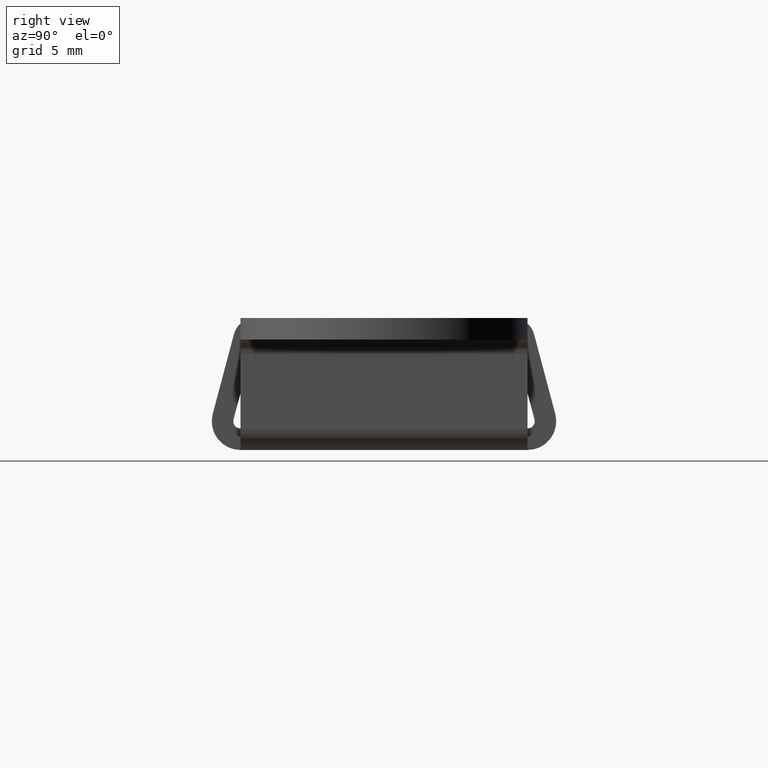
[diagram: clean part render]
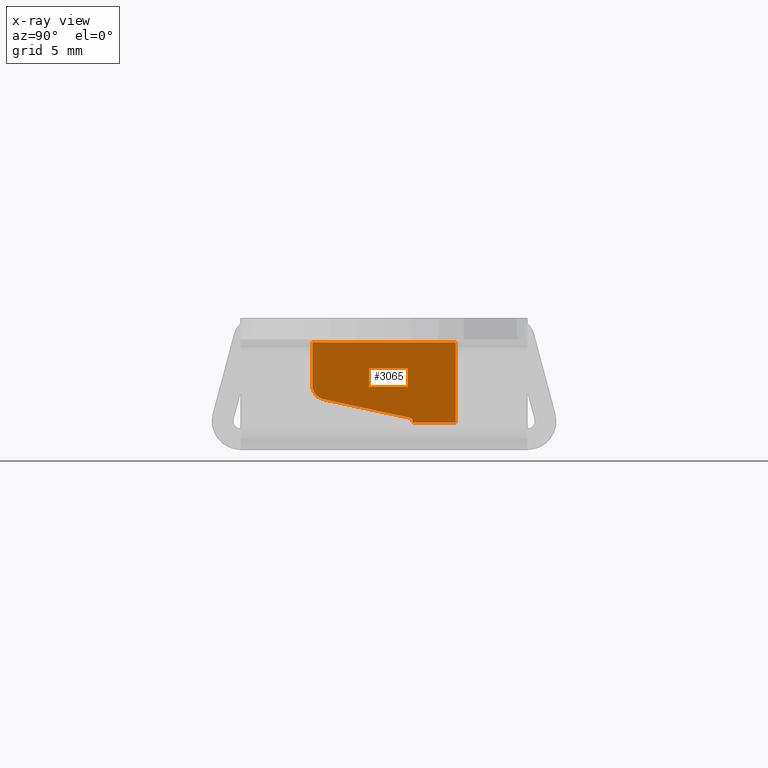
[diagram: x-ray — body ghosted, one internal face saturated and labeled with its STEP entity id]
A machine part, right view, then the same camera in x-ray: the body is ghosted and one INTERNAL B-rep face — a face not visible from any outside direction — is saturated and labeled: STEP entity #3065.
In plain terms, the highlighted planar face has unit normal (-1, -0, -0).
Its self-contained STEP definition (entity closure, byte-faithful):
#13 = CARTESIAN_POINT ( 'NONE',  ( 7.050000000000399500, -4.209529088729519600, -4.169386623843389600 ) ) ;
#290 = CARTESIAN_POINT ( 'NONE',  ( 7.049999999999549500, 1.762858726620580000, -5.449184012846989900 ) ) ;
#404 = LINE ( 'NONE', #6748, #3051 ) ;
#523 = VERTEX_POINT ( 'NONE', #13 ) ;
#525 = DIRECTION ( 'NONE',  ( 0.0000000000000000000, 0.0000000000000000000, 1.000000000000000000 ) ) ;
#539 = EDGE_CURVE ( 'NONE', #1742, #2744, #5807, .T. ) ;
#573 = AXIS2_PLACEMENT_3D ( 'NONE', #4365, #1206, #4905 ) ;
#610 = VERTEX_POINT ( 'NONE', #3678 ) ;
#618 = CARTESIAN_POINT ( 'NONE',  ( 7.050000000000520300, -4.999999999998690800, -3.191584209765839100 ) ) ;
#627 = CARTESIAN_POINT ( 'NONE',  ( 7.050000000000520300, -4.999999999998690800, -3.191584209765889300 ) ) ;
#940 = DIRECTION ( 'NONE',  ( 1.420197293100522000E-013, -1.000000000000000000, 0.0000000000000000000 ) ) ;
#991 = AXIS2_PLACEMENT_3D ( 'NONE', #3921, #1314, #5002 ) ;
#1011 = CARTESIAN_POINT ( 'NONE',  ( 7.049999999999520200, 2.000000000001310100, -5.742524737070208800 ) ) ;
#1206 = DIRECTION ( 'NONE',  ( -1.000000000000000000, -1.400058754893598000E-013, -2.699031586499335200E-015 ) ) ;
#1273 = ORIENTED_EDGE ( 'NONE', *, *, #3762, .T. ) ;
#1314 = DIRECTION ( 'NONE',  ( -1.000000000000000000, -1.425526363618589900E-013, -0.0000000000000000000 ) ) ;
#1685 = CARTESIAN_POINT ( 'NONE',  ( 7.049999999999560200, 1.700000000001309800, -5.742524737070208800 ) ) ;
#1742 = VERTEX_POINT ( 'NONE', #1011 ) ;
#1751 = ORIENTED_EDGE ( 'NONE', *, *, #5387, .F. ) ;
#1771 = EDGE_CURVE ( 'NONE', #6194, #3663, #3124, .T. ) ;
#1871 = CARTESIAN_POINT ( 'NONE',  ( 7.050000000000399500, -4.209529088729519600, -4.169386623843389600 ) ) ;
#1954 = ORIENTED_EDGE ( 'NONE', *, *, #2144, .T. ) ;
#2144 = EDGE_CURVE ( 'NONE', #2496, #610, #5332, .T. ) ;
#2207 = DIRECTION ( 'NONE',  ( -1.416690838714392800E-013, 1.000000000000000000, 8.673617379884037000E-015 ) ) ;
#2496 = VERTEX_POINT ( 'NONE', #618 ) ;
#2592 = ORIENTED_EDGE ( 'NONE', *, *, #1771, .F. ) ;
#2744 = VERTEX_POINT ( 'NONE', #290 ) ;
#2768 = ORIENTED_EDGE ( 'NONE', *, *, #6635, .T. ) ;
#2920 = DIRECTION ( 'NONE',  ( -1.391602688045148500E-013, 0.9778024140774093100, -0.2095290887308745600 ) ) ;
#3046 = CIRCLE ( 'NONE', #573, 1.000000000000000200 ) ;
#3048 = CARTESIAN_POINT ( 'NONE',  ( 7.049999999999099200, 5.000000000001230100, -0.2000000000000204700 ) ) ;
#3051 = VECTOR ( 'NONE', #3598, 1000.000000000000000 ) ;
#3065 = ADVANCED_FACE ( 'NONE', ( #3711 ), #4464, .T. ) ;
#3124 = LINE ( 'NONE', #3688, #5918 ) ;
#3524 = CARTESIAN_POINT ( 'NONE',  ( 7.049999999999099200, 5.000000000001230100, -0.1999999999999805800 ) ) ;
#3535 = ORIENTED_EDGE ( 'NONE', *, *, #3602, .F. ) ;
#3598 = DIRECTION ( 'NONE',  ( 0.0000000000000000000, 0.0000000000000000000, -1.000000000000000000 ) ) ;
#3602 = EDGE_CURVE ( 'NONE', #523, #2744, #4034, .T. ) ;
#3663 = VERTEX_POINT ( 'NONE', #3524 ) ;
#3678 = CARTESIAN_POINT ( 'NONE',  ( 7.050000000000520300, -4.999999999998619800, -0.1999999999999805800 ) ) ;
#3688 = CARTESIAN_POINT ( 'NONE',  ( 7.049999999999099200, 5.000000000001350000, -5.799999999999959900 ) ) ;
#3711 = FACE_OUTER_BOUND ( 'NONE', #5395, .T. ) ;
#3762 = EDGE_CURVE ( 'NONE', #6194, #3811, #6005, .T. ) ;
#3792 = DIRECTION ( 'NONE',  ( 0.0000000000000000000, 0.0000000000000000000, 1.000000000000000000 ) ) ;
#3811 = VERTEX_POINT ( 'NONE', #4638 ) ;
#3921 = CARTESIAN_POINT ( 'NONE',  ( 7.049999999998959800, 6.000000000002160000, 0.3600000000000894200 ) ) ;
#4034 = LINE ( 'NONE', #1871, #5266 ) ;
#4089 = CARTESIAN_POINT ( 'NONE',  ( 7.049999999999879900, 5.000000000002080100, -5.800000000000149900 ) ) ;
#4365 = CARTESIAN_POINT ( 'NONE',  ( 7.050000000000380000, -3.999999999998614900, -3.191584209765849800 ) ) ;
#4464 = PLANE ( 'NONE',  #991 ) ;
#4603 = VECTOR ( 'NONE', #4619, 1000.000000000000000 ) ;
#4619 = DIRECTION ( 'NONE',  ( 1.432927850449168200E-013, -1.000000000000000000, 0.0000000000000000000 ) ) ;
#4638 = CARTESIAN_POINT ( 'NONE',  ( 7.049999999999520200, 2.000000000001310100, -5.799999999999919900 ) ) ;
#4825 = AXIS2_PLACEMENT_3D ( 'NONE', #1685, #5358, #2207 ) ;
#4837 = EDGE_CURVE ( 'NONE', #3663, #610, #5498, .T. ) ;
#4905 = DIRECTION ( 'NONE',  ( 3.209238430557092500E-014, -0.2095290887308758600, -0.9778024140774090900 ) ) ;
#4977 = ORIENTED_EDGE ( 'NONE', *, *, #4837, .F. ) ;
#5002 = DIRECTION ( 'NONE',  ( 0.0000000000000000000, 0.0000000000000000000, -1.000000000000000000 ) ) ;
#5183 = VECTOR ( 'NONE', #3792, 1000.000000000000000 ) ;
#5266 = VECTOR ( 'NONE', #2920, 1000.000000000000100 ) ;
#5332 = LINE ( 'NONE', #627, #5183 ) ;
#5339 = VECTOR ( 'NONE', #940, 1000.000000000000000 ) ;
#5358 = DIRECTION ( 'NONE',  ( 1.000000000000000000, 1.421085471520194100E-013, 1.177310513037600100E-015 ) ) ;
#5387 = EDGE_CURVE ( 'NONE', #1742, #3811, #404, .T. ) ;
#5395 = EDGE_LOOP ( 'NONE', ( #2592, #1273, #1751, #5708, #3535, #2768, #1954, #4977 ) ) ;
#5498 = LINE ( 'NONE', #3048, #5339 ) ;
#5708 = ORIENTED_EDGE ( 'NONE', *, *, #539, .T. ) ;
#5807 = CIRCLE ( 'NONE', #4825, 0.2999999999999999300 ) ;
#5918 = VECTOR ( 'NONE', #525, 1000.000000000000000 ) ;
#6005 = LINE ( 'NONE', #4089, #4603 ) ;
#6194 = VERTEX_POINT ( 'NONE', #6273 ) ;
#6273 = CARTESIAN_POINT ( 'NONE',  ( 7.049999999999879900, 5.000000000002080100, -5.799999999999959900 ) ) ;
#6635 = EDGE_CURVE ( 'NONE', #523, #2496, #3046, .T. ) ;
#6748 = CARTESIAN_POINT ( 'NONE',  ( 7.049999999999520200, 2.000000000001310100, -5.742524737070208800 ) ) ;